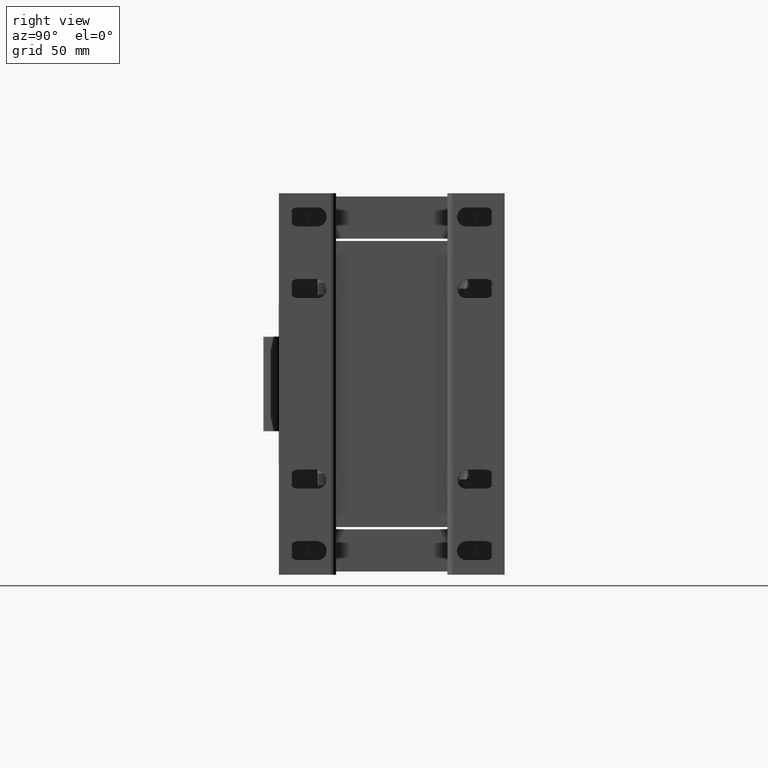
[diagram: clean part render]
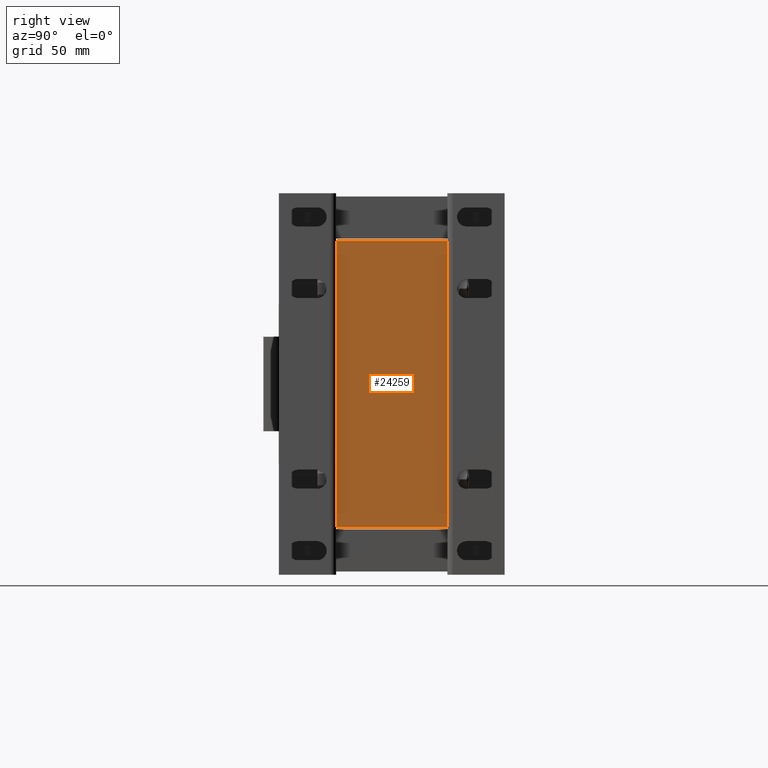
[diagram: same view with one face highlighted and labeled with its STEP entity id]
A machine part, right view. The second image highlights one B-rep face of the part: STEP entity #24259.
In plain terms, the highlighted planar face has unit normal (1, 0, -0).
Its self-contained STEP definition (entity closure, byte-faithful):
#2377=FACE_OUTER_BOUND('',#3729,.T.);
#3729=EDGE_LOOP('',(#16264,#16265,#16266,#16267));
#5177=LINE('',#35335,#7766);
#5178=LINE('',#35338,#7767);
#5179=LINE('',#35340,#7768);
#5180=LINE('',#35341,#7769);
#7766=VECTOR('',#28223,10.);
#7767=VECTOR('',#28226,10.);
#7768=VECTOR('',#28227,10.);
#7769=VECTOR('',#28228,10.);
#10352=VERTEX_POINT('',#35328);
#10355=VERTEX_POINT('',#35333);
#10356=VERTEX_POINT('',#35337);
#10357=VERTEX_POINT('',#35339);
#12662=EDGE_CURVE('',#10352,#10355,#5177,.T.);
#12663=EDGE_CURVE('',#10356,#10352,#5178,.T.);
#12664=EDGE_CURVE('',#10357,#10355,#5179,.T.);
#12665=EDGE_CURVE('',#10356,#10357,#5180,.T.);
#16264=ORIENTED_EDGE('',*,*,#12663,.T.);
#16265=ORIENTED_EDGE('',*,*,#12662,.T.);
#16266=ORIENTED_EDGE('',*,*,#12664,.F.);
#16267=ORIENTED_EDGE('',*,*,#12665,.F.);
#23419=PLANE('',#25924);
#24259=ADVANCED_FACE('',(#2377),#23419,.T.);
#25924=AXIS2_PLACEMENT_3D('',#35336,#28224,#28225);
#28223=DIRECTION('',(0.,1.,0.));
#28224=DIRECTION('center_axis',(1.,0.,-3.94745964311167E-16));
#28225=DIRECTION('ref_axis',(-3.94745964311167E-16,0.,-1.));
#28226=DIRECTION('',(-3.94745964311167E-16,0.,-1.));
#28227=DIRECTION('',(-3.94745964311167E-16,0.,-1.));
#28228=DIRECTION('',(0.,1.,0.));
#35328=CARTESIAN_POINT('',(0.,0.,0.));
#35333=CARTESIAN_POINT('',(0.,70.,0.));
#35335=CARTESIAN_POINT('',(0.,0.,0.));
#35336=CARTESIAN_POINT('Origin',(7.105427357601E-14,0.,180.));
#35337=CARTESIAN_POINT('',(7.105427357601E-14,0.,180.));
#35338=CARTESIAN_POINT('',(7.105427357601E-14,0.,180.));
#35339=CARTESIAN_POINT('',(7.105427357601E-14,70.,180.));
#35340=CARTESIAN_POINT('',(7.105427357601E-14,70.,180.));
#35341=CARTESIAN_POINT('',(7.105427357601E-14,0.,180.));